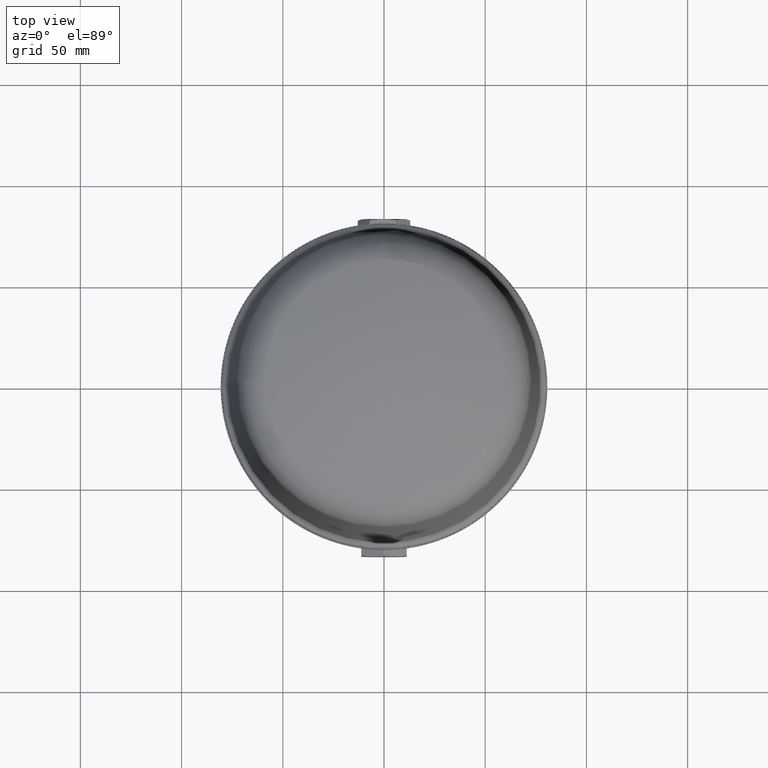
[diagram: clean part render]
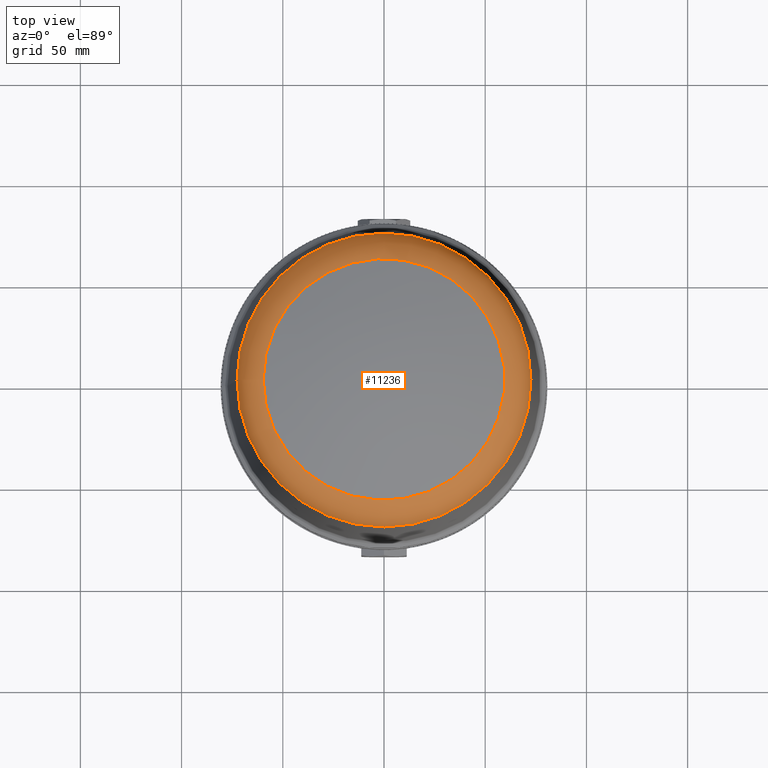
[diagram: same view with one face highlighted and labeled with its STEP entity id]
A machine part, top view. The second image highlights one B-rep face of the part: STEP entity #11236.
In plain terms, the highlighted toroidal blend (fillet) surface has major radius 54.5934 mm and minor (blend) radius 18 mm.
Its self-contained STEP definition (entity closure, byte-faithful):
#6978=TOROIDAL_SURFACE('',#24667,54.5933817277864,18.);
#11236=ADVANCED_FACE('',(#13104,#13105),#6978,.T.);
#13104=FACE_BOUND('',#13231,.T.);
#13105=FACE_BOUND('',#13232,.T.);
#13231=EDGE_LOOP('',(#14408));
#13232=EDGE_LOOP('',(#14409));
#14408=ORIENTED_EDGE('',*,*,#21269,.F.);
#14409=ORIENTED_EDGE('',*,*,#21270,.T.);
#19656=VERTEX_POINT('',#31723);
#19657=VERTEX_POINT('',#31725);
#21269=EDGE_CURVE('',#19656,#19656,#23869,.T.);
#21270=EDGE_CURVE('',#19657,#19657,#23870,.T.);
#23869=CIRCLE('',#24665,59.6976214385919);
#23870=CIRCLE('',#24666,72.5879000713646);
#24665=AXIS2_PLACEMENT_3D('',#31722,#26572,#26573);
#24666=AXIS2_PLACEMENT_3D('',#31724,#26574,#26575);
#24667=AXIS2_PLACEMENT_3D('',#31726,#26576,#26577);
#26572=DIRECTION('',(0.,0.,1.));
#26573=DIRECTION('',(-1.,0.,0.));
#26574=DIRECTION('',(0.,0.,1.));
#26575=DIRECTION('',(-1.,0.,0.));
#26576=DIRECTION('',(-1.110223E-016,0.,1.));
#26577=DIRECTION('',(0.,1.,0.));
#31722=CARTESIAN_POINT('',(-1.59794097580193E-014,0.,228.136022595497));
#31723=CARTESIAN_POINT('',(-59.6976214385919,0.,228.136022595497));
#31724=CARTESIAN_POINT('',(-1.40137231580193E-014,0.,210.430693451997));
#31725=CARTESIAN_POINT('',(-72.5879000713646,0.,210.430693451997));
#31726=CARTESIAN_POINT('',(-1.67797301580193E-014,0.,210.874888884914));